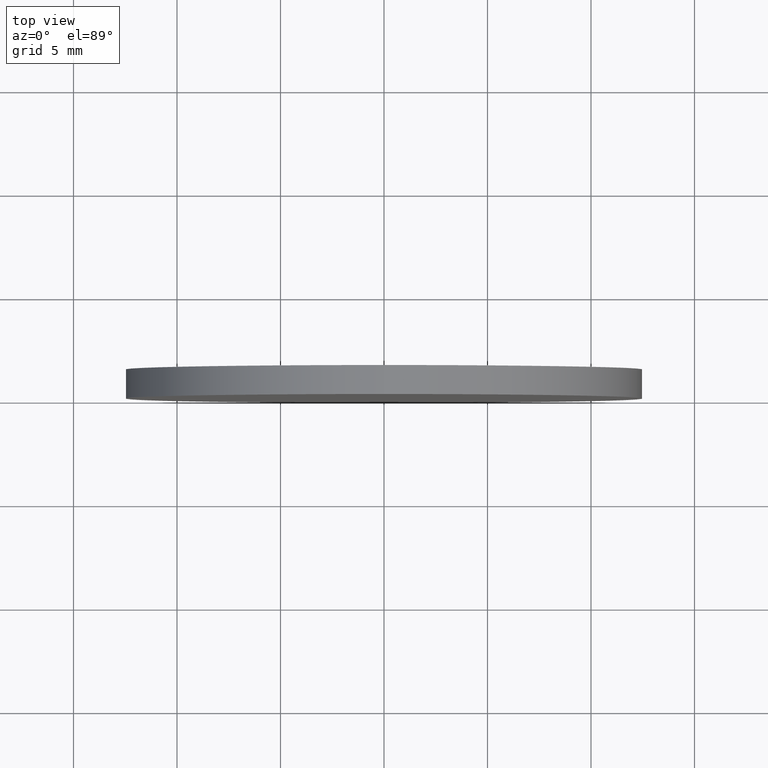
[diagram: clean part render]
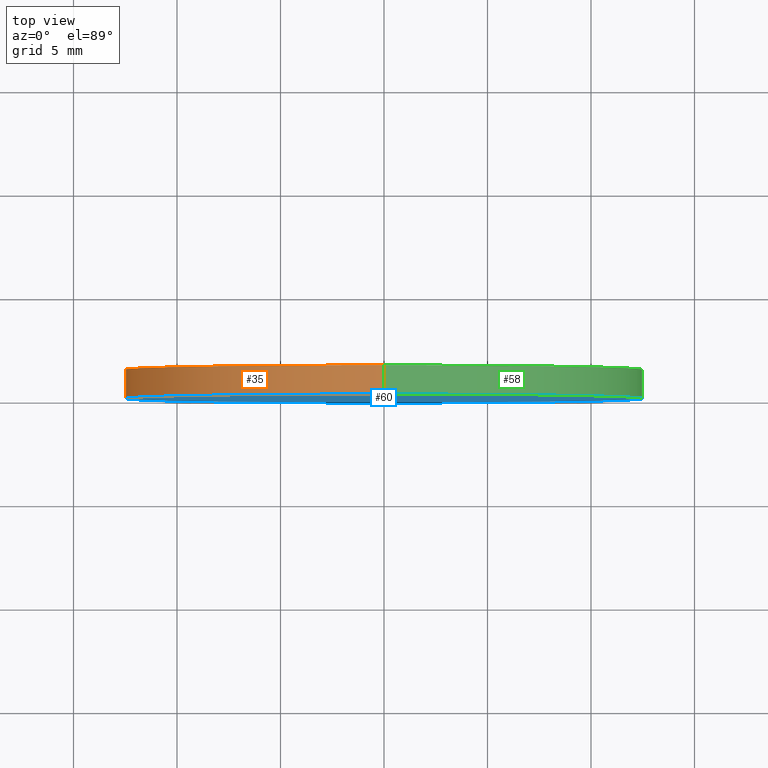
[diagram: same view with three faces highlighted in distinct colors, each labeled with its STEP entity id]
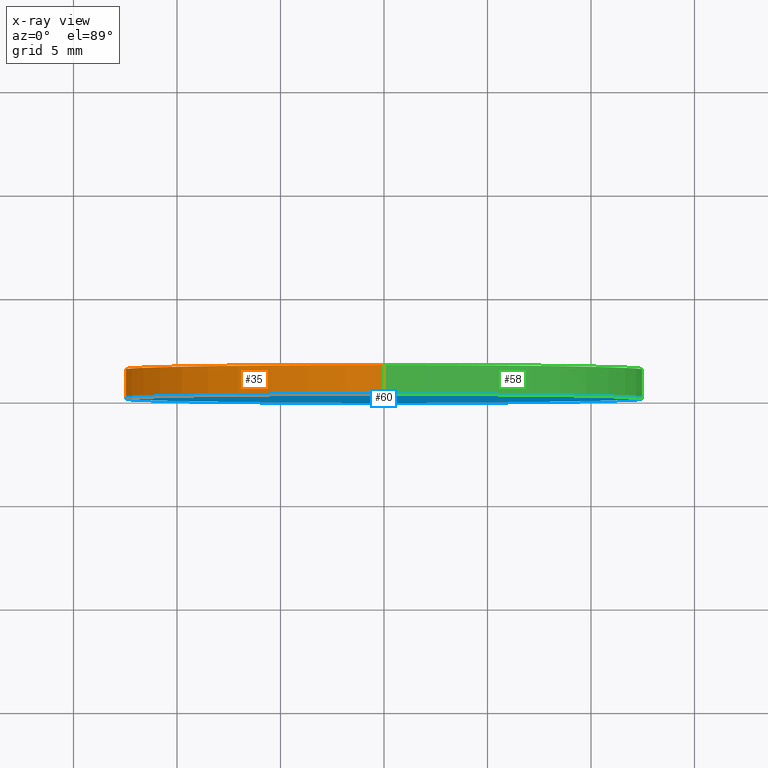
[diagram: x-ray of the same camera — body ghosted, the three highlighted faces saturated]
A machine part, top view with three faces highlighted in distinct colors.
The next image is the same camera in x-ray (body ghosted, the three faces saturated) — at least one of them is partly hidden behind the body in this view.
Their STEP definitions:

[orange] entity #35 — the highlighted cylindrical surface (partial cylindrical patch) has radius 12.5 mm, axis along (-0, -1, -0).
#4 = CIRCLE ( 'NONE', #116, 12.50000000000000000 ) ;
#7 = DIRECTION ( 'NONE',  ( 0.0000000000000000000, 0.0000000000000000000, 1.000000000000000000 ) ) ;
#12 = DIRECTION ( 'NONE',  ( -0.0000000000000000000, -1.000000000000000000, -0.0000000000000000000 ) ) ;
#14 = AXIS2_PLACEMENT_3D ( 'NONE', #108, #59, #62 ) ;
#17 = VECTOR ( 'NONE', #12, 1000.000000000000000 ) ;
#19 = VERTEX_POINT ( 'NONE', #93 ) ;
#23 = ORIENTED_EDGE ( 'NONE', *, *, #81, .F. ) ;
#29 = ORIENTED_EDGE ( 'NONE', *, *, #75, .T. ) ;
#31 = VERTEX_POINT ( 'NONE', #111 ) ;
#35 = ADVANCED_FACE ( 'NONE', ( #83 ), #95, .T. ) ;
#36 = CARTESIAN_POINT ( 'NONE',  ( 0.0000000000000000000, 0.0000000000000000000, -12.50000000000000000 ) ) ;
#38 = EDGE_CURVE ( 'NONE', #19, #132, #127, .T. ) ;
#40 = EDGE_LOOP ( 'NONE', ( #23, #70, #78, #29 ) ) ;
#44 = VERTEX_POINT ( 'NONE', #135 ) ;
#52 = EDGE_CURVE ( 'NONE', #19, #31, #73, .T. ) ;
#56 = DIRECTION ( 'NONE',  ( -0.0000000000000000000, -1.000000000000000000, -0.0000000000000000000 ) ) ;
#59 = DIRECTION ( 'NONE',  ( -0.0000000000000000000, -1.000000000000000000, -0.0000000000000000000 ) ) ;
#62 = DIRECTION ( 'NONE',  ( 0.0000000000000000000, 0.0000000000000000000, -1.000000000000000000 ) ) ;
#70 = ORIENTED_EDGE ( 'NONE', *, *, #52, .F. ) ;
#73 = CIRCLE ( 'NONE', #84, 12.50000000000000000 ) ;
#75 = EDGE_CURVE ( 'NONE', #132, #44, #4, .T. ) ;
#77 = DIRECTION ( 'NONE',  ( 0.0000000000000000000, 1.000000000000000000, 0.0000000000000000000 ) ) ;
#78 = ORIENTED_EDGE ( 'NONE', *, *, #38, .T. ) ;
#79 = CARTESIAN_POINT ( 'NONE',  ( 0.0000000000000000000, 0.0000000000000000000, 0.0000000000000000000 ) ) ;
#80 = VECTOR ( 'NONE', #56, 1000.000000000000000 ) ;
#81 = EDGE_CURVE ( 'NONE', #31, #44, #103, .T. ) ;
#83 = FACE_OUTER_BOUND ( 'NONE', #40, .T. ) ;
#84 = AXIS2_PLACEMENT_3D ( 'NONE', #126, #112, #100 ) ;
#93 = CARTESIAN_POINT ( 'NONE',  ( 0.0000000000000000000, 1.399999999999999900, -12.50000000000000000 ) ) ;
#95 = CYLINDRICAL_SURFACE ( 'NONE', #14, 12.50000000000000000 ) ;
#100 = DIRECTION ( 'NONE',  ( 0.0000000000000000000, 0.0000000000000000000, 1.000000000000000000 ) ) ;
#103 = LINE ( 'NONE', #122, #17 ) ;
#104 = CARTESIAN_POINT ( 'NONE',  ( 0.0000000000000000000, 1.399999999999999900, -12.50000000000000000 ) ) ;
#108 = CARTESIAN_POINT ( 'NONE',  ( 0.0000000000000000000, 1.399999999999999900, 0.0000000000000000000 ) ) ;
#111 = CARTESIAN_POINT ( 'NONE',  ( 1.530808498934191500E-015, 1.399999999999999900, 12.50000000000000000 ) ) ;
#112 = DIRECTION ( 'NONE',  ( 0.0000000000000000000, 1.000000000000000000, 0.0000000000000000000 ) ) ;
#116 = AXIS2_PLACEMENT_3D ( 'NONE', #79, #77, #7 ) ;
#122 = CARTESIAN_POINT ( 'NONE',  ( 1.530808498934191500E-015, 1.399999999999999900, 12.50000000000000000 ) ) ;
#126 = CARTESIAN_POINT ( 'NONE',  ( 0.0000000000000000000, 1.399999999999999900, 0.0000000000000000000 ) ) ;
#127 = LINE ( 'NONE', #104, #80 ) ;
#132 = VERTEX_POINT ( 'NONE', #36 ) ;
#135 = CARTESIAN_POINT ( 'NONE',  ( 1.530808498934191500E-015, 0.0000000000000000000, 12.50000000000000000 ) ) ;

[blue] entity #60 — the highlighted planar face has unit normal (0, 1, 0).
#4 = CIRCLE ( 'NONE', #116, 12.50000000000000000 ) ;
#7 = DIRECTION ( 'NONE',  ( 0.0000000000000000000, 0.0000000000000000000, 1.000000000000000000 ) ) ;
#18 = PLANE ( 'NONE',  #50 ) ;
#25 = EDGE_LOOP ( 'NONE', ( #48, #51 ) ) ;
#26 = CARTESIAN_POINT ( 'NONE',  ( 0.0000000000000000000, 0.0000000000000000000, 0.0000000000000000000 ) ) ;
#34 = CARTESIAN_POINT ( 'NONE',  ( 0.0000000000000000000, 0.0000000000000000000, 0.0000000000000000000 ) ) ;
#36 = CARTESIAN_POINT ( 'NONE',  ( 0.0000000000000000000, 0.0000000000000000000, -12.50000000000000000 ) ) ;
#42 = AXIS2_PLACEMENT_3D ( 'NONE', #34, #124, #88 ) ;
#44 = VERTEX_POINT ( 'NONE', #135 ) ;
#48 = ORIENTED_EDGE ( 'NONE', *, *, #75, .F. ) ;
#50 = AXIS2_PLACEMENT_3D ( 'NONE', #26, #131, #71 ) ;
#51 = ORIENTED_EDGE ( 'NONE', *, *, #119, .F. ) ;
#60 = ADVANCED_FACE ( 'NONE', ( #109 ), #18, .F. ) ;
#71 = DIRECTION ( 'NONE',  ( 0.0000000000000000000, -0.0000000000000000000, 1.000000000000000000 ) ) ;
#75 = EDGE_CURVE ( 'NONE', #132, #44, #4, .T. ) ;
#77 = DIRECTION ( 'NONE',  ( 0.0000000000000000000, 1.000000000000000000, 0.0000000000000000000 ) ) ;
#79 = CARTESIAN_POINT ( 'NONE',  ( 0.0000000000000000000, 0.0000000000000000000, 0.0000000000000000000 ) ) ;
#88 = DIRECTION ( 'NONE',  ( 0.0000000000000000000, 0.0000000000000000000, 1.000000000000000000 ) ) ;
#109 = FACE_OUTER_BOUND ( 'NONE', #25, .T. ) ;
#116 = AXIS2_PLACEMENT_3D ( 'NONE', #79, #77, #7 ) ;
#119 = EDGE_CURVE ( 'NONE', #44, #132, #133, .T. ) ;
#124 = DIRECTION ( 'NONE',  ( 0.0000000000000000000, 1.000000000000000000, 0.0000000000000000000 ) ) ;
#131 = DIRECTION ( 'NONE',  ( 0.0000000000000000000, 1.000000000000000000, 0.0000000000000000000 ) ) ;
#132 = VERTEX_POINT ( 'NONE', #36 ) ;
#133 = CIRCLE ( 'NONE', #42, 12.50000000000000000 ) ;
#135 = CARTESIAN_POINT ( 'NONE',  ( 1.530808498934191500E-015, 0.0000000000000000000, 12.50000000000000000 ) ) ;

[green] entity #58 — the highlighted cylindrical surface (partial cylindrical patch) has radius 12.5 mm, axis along (-0, -1, -0).
#1 = DIRECTION ( 'NONE',  ( 0.0000000000000000000, 0.0000000000000000000, -1.000000000000000000 ) ) ;
#11 = CARTESIAN_POINT ( 'NONE',  ( 0.0000000000000000000, 1.399999999999999900, 0.0000000000000000000 ) ) ;
#12 = DIRECTION ( 'NONE',  ( -0.0000000000000000000, -1.000000000000000000, -0.0000000000000000000 ) ) ;
#17 = VECTOR ( 'NONE', #12, 1000.000000000000000 ) ;
#19 = VERTEX_POINT ( 'NONE', #93 ) ;
#22 = ORIENTED_EDGE ( 'NONE', *, *, #119, .T. ) ;
#31 = VERTEX_POINT ( 'NONE', #111 ) ;
#34 = CARTESIAN_POINT ( 'NONE',  ( 0.0000000000000000000, 0.0000000000000000000, 0.0000000000000000000 ) ) ;
#36 = CARTESIAN_POINT ( 'NONE',  ( 0.0000000000000000000, 0.0000000000000000000, -12.50000000000000000 ) ) ;
#37 = DIRECTION ( 'NONE',  ( 0.0000000000000000000, 1.000000000000000000, 0.0000000000000000000 ) ) ;
#38 = EDGE_CURVE ( 'NONE', #19, #132, #127, .T. ) ;
#42 = AXIS2_PLACEMENT_3D ( 'NONE', #34, #124, #88 ) ;
#43 = DIRECTION ( 'NONE',  ( 0.0000000000000000000, 0.0000000000000000000, 1.000000000000000000 ) ) ;
#44 = VERTEX_POINT ( 'NONE', #135 ) ;
#54 = ORIENTED_EDGE ( 'NONE', *, *, #38, .F. ) ;
#56 = DIRECTION ( 'NONE',  ( -0.0000000000000000000, -1.000000000000000000, -0.0000000000000000000 ) ) ;
#58 = ADVANCED_FACE ( 'NONE', ( #89 ), #117, .T. ) ;
#61 = ORIENTED_EDGE ( 'NONE', *, *, #67, .F. ) ;
#66 = EDGE_LOOP ( 'NONE', ( #61, #137, #22, #54 ) ) ;
#67 = EDGE_CURVE ( 'NONE', #31, #19, #114, .T. ) ;
#80 = VECTOR ( 'NONE', #56, 1000.000000000000000 ) ;
#81 = EDGE_CURVE ( 'NONE', #31, #44, #103, .T. ) ;
#88 = DIRECTION ( 'NONE',  ( 0.0000000000000000000, 0.0000000000000000000, 1.000000000000000000 ) ) ;
#89 = FACE_OUTER_BOUND ( 'NONE', #66, .T. ) ;
#93 = CARTESIAN_POINT ( 'NONE',  ( 0.0000000000000000000, 1.399999999999999900, -12.50000000000000000 ) ) ;
#94 = AXIS2_PLACEMENT_3D ( 'NONE', #138, #123, #1 ) ;
#103 = LINE ( 'NONE', #122, #17 ) ;
#104 = CARTESIAN_POINT ( 'NONE',  ( 0.0000000000000000000, 1.399999999999999900, -12.50000000000000000 ) ) ;
#107 = AXIS2_PLACEMENT_3D ( 'NONE', #11, #37, #43 ) ;
#111 = CARTESIAN_POINT ( 'NONE',  ( 1.530808498934191500E-015, 1.399999999999999900, 12.50000000000000000 ) ) ;
#114 = CIRCLE ( 'NONE', #107, 12.50000000000000000 ) ;
#117 = CYLINDRICAL_SURFACE ( 'NONE', #94, 12.50000000000000000 ) ;
#119 = EDGE_CURVE ( 'NONE', #44, #132, #133, .T. ) ;
#122 = CARTESIAN_POINT ( 'NONE',  ( 1.530808498934191500E-015, 1.399999999999999900, 12.50000000000000000 ) ) ;
#123 = DIRECTION ( 'NONE',  ( -0.0000000000000000000, -1.000000000000000000, -0.0000000000000000000 ) ) ;
#124 = DIRECTION ( 'NONE',  ( 0.0000000000000000000, 1.000000000000000000, 0.0000000000000000000 ) ) ;
#127 = LINE ( 'NONE', #104, #80 ) ;
#132 = VERTEX_POINT ( 'NONE', #36 ) ;
#133 = CIRCLE ( 'NONE', #42, 12.50000000000000000 ) ;
#135 = CARTESIAN_POINT ( 'NONE',  ( 1.530808498934191500E-015, 0.0000000000000000000, 12.50000000000000000 ) ) ;
#137 = ORIENTED_EDGE ( 'NONE', *, *, #81, .T. ) ;
#138 = CARTESIAN_POINT ( 'NONE',  ( 0.0000000000000000000, 1.399999999999999900, 0.0000000000000000000 ) ) ;